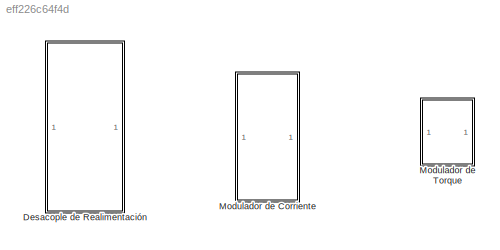
MODEL slx_eff226c64f4d
KIND model
CONFIG AbsTol = auto
CONFIG EnableMultiTasking = off
CONFIG FixedStep = auto
CONFIG MaxStep = auto
CONFIG MinStep = auto
CONFIG RelTol = 1e-3
CONFIG SampleTimeConstraint = Unconstrained
CONFIG SolverName = VariableStepAuto
CONFIG StartTime = 0.0
CONFIG StopTime = 10.0
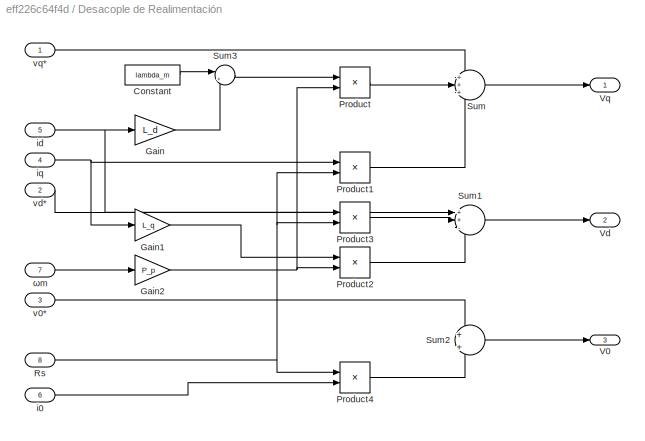
BLOCK [SubSystem] Desacople de Realimentación
BLOCK [Constant] Desacople de Realimentación/Constant
  Value = lambda_m
BLOCK [Gain] Desacople de Realimentación/Gain
  Gain = L_d
BLOCK [Gain] Desacople de Realimentación/Gain1
  Gain = L_q
BLOCK [Gain] Desacople de Realimentación/Gain2
  Gain = P_p
BLOCK [Product] Desacople de Realimentación/Product
BLOCK [Product] Desacople de Realimentación/Product1
BLOCK [Product] Desacople de Realimentación/Product2
BLOCK [Product] Desacople de Realimentación/Product3
BLOCK [Product] Desacople de Realimentación/Product4
BLOCK [Inport] Desacople de Realimentación/Rs
  Port = 8
BLOCK [Sum] Desacople de Realimentación/Sum
  Inputs = +++
BLOCK [Sum] Desacople de Realimentación/Sum1
  Inputs = ++-
BLOCK [Sum] Desacople de Realimentación/Sum2
  Inputs = +|+
BLOCK [Sum] Desacople de Realimentación/Sum3
  Inputs = |++
BLOCK [Outport] Desacople de Realimentación/V0
  Port = 3
BLOCK [Outport] Desacople de Realimentación/Vd
  Port = 2
BLOCK [Outport] Desacople de Realimentación/Vq
BLOCK [Inport] Desacople de Realimentación/i0
  Port = 6
BLOCK [Inport] Desacople de Realimentación/id
  Port = 5
BLOCK [Inport] Desacople de Realimentación/iq
  Port = 4
BLOCK [Inport] Desacople de Realimentación/v0*
  Port = 3
BLOCK [Inport] Desacople de Realimentación/vd*
  Port = 2
BLOCK [Inport] Desacople de Realimentación/vq*
BLOCK [Inport] Desacople de Realimentación/ωm
  Port = 7
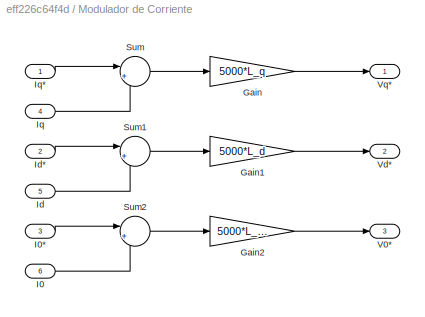
BLOCK [SubSystem] Modulador de Corriente
BLOCK [Gain] Modulador de Corriente/Gain
  Gain = 5000*L_q
BLOCK [Gain] Modulador de Corriente/Gain1
  Gain = 5000*L_d
BLOCK [Gain] Modulador de Corriente/Gain2
  Gain = 5000*L_ls
BLOCK [Inport] Modulador de Corriente/I0
  Port = 6
BLOCK [Inport] Modulador de Corriente/I0*
  Port = 3
BLOCK [Inport] Modulador de Corriente/Id
  Port = 5
BLOCK [Inport] Modulador de Corriente/Id*
  Port = 2
BLOCK [Inport] Modulador de Corriente/Iq
  Port = 4
BLOCK [Inport] Modulador de Corriente/Iq*
BLOCK [Sum] Modulador de Corriente/Sum
  Inputs = |+-
BLOCK [Sum] Modulador de Corriente/Sum1
  Inputs = |+-
BLOCK [Sum] Modulador de Corriente/Sum2
  Inputs = |+-
BLOCK [Outport] Modulador de Corriente/V0*
  Port = 3
BLOCK [Outport] Modulador de Corriente/Vd*
  Port = 2
BLOCK [Outport] Modulador de Corriente/Vq*
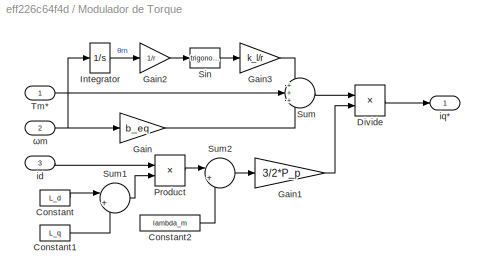
BLOCK [SubSystem] Modulador de Torque
BLOCK [Constant] Modulador de Torque/Constant
  Value = L_d
BLOCK [Constant] Modulador de Torque/Constant1
  Value = L_q
BLOCK [Constant] Modulador de Torque/Constant2
  Value = lambda_m
BLOCK [Product] Modulador de Torque/Divide
  Inputs = */
BLOCK [Gain] Modulador de Torque/Gain
  Gain = b_eq
BLOCK [Gain] Modulador de Torque/Gain1
  Gain = 3/2*P_p
BLOCK [Gain] Modulador de Torque/Gain2
  Gain = 1/r
BLOCK [Gain] Modulador de Torque/Gain3
  Gain = k_l/r
BLOCK [Integrator] Modulador de Torque/Integrator
BLOCK [Product] Modulador de Torque/Product
BLOCK [Trigonometry] Modulador de Torque/Sin
BLOCK [Sum] Modulador de Torque/Sum
  Inputs = +++
BLOCK [Sum] Modulador de Torque/Sum1
  Inputs = |+-
BLOCK [Sum] Modulador de Torque/Sum2
  Inputs = |++
BLOCK [Inport] Modulador de Torque/Tm*
BLOCK [Inport] Modulador de Torque/id
  Port = 3
BLOCK [Outport] Modulador de Torque/iq*
BLOCK [Inport] Modulador de Torque/ωm
  Port = 2
LINE Desacople de Realimentación/Constant:1 -> Desacople de Realimentación/Sum3:1
LINE Desacople de Realimentación/Gain1:1 -> Desacople de Realimentación/Product2:1
NET Desacople de Realimentación/Gain2:1 -> Desacople de Realimentación/Product2:2, Desacople de Realimentación/Product:2
LINE Desacople de Realimentación/Gain:1 -> Desacople de Realimentación/Sum3:2
LINE Desacople de Realimentación/Product1:1 -> Desacople de Realimentación/Sum:3
LINE Desacople de Realimentación/Product2:1 -> Desacople de Realimentación/Sum1:3
LINE Desacople de Realimentación/Product3:1 -> Desacople de Realimentación/Sum1:2
LINE Desacople de Realimentación/Product4:1 -> Desacople de Realimentación/Sum2:2
LINE Desacople de Realimentación/Product:1 -> Desacople de Realimentación/Sum:2
NET Desacople de Realimentación/Rs:1 -> Desacople de Realimentación/Product1:2, Desacople de Realimentación/Product3:2, Desacople de Realimentación/Product4:1
LINE Desacople de Realimentación/Sum1:1 -> Desacople de Realimentación/Vd:1
LINE Desacople de Realimentación/Sum2:1 -> Desacople de Realimentación/V0:1
LINE Desacople de Realimentación/Sum3:1 -> Desacople de Realimentación/Product:1
LINE Desacople de Realimentación/Sum:1 -> Desacople de Realimentación/Vq:1
LINE Desacople de Realimentación/i0:1 -> Desacople de Realimentación/Product4:2
NET Desacople de Realimentación/id:1 -> Desacople de Realimentación/Gain:1, Desacople de Realimentación/Product3:1
NET Desacople de Realimentación/iq:1 -> Desacople de Realimentación/Gain1:1, Desacople de Realimentación/Product1:1
LINE Desacople de Realimentación/v0*:1 -> Desacople de Realimentación/Sum2:1
LINE Desacople de Realimentación/vd*:1 -> Desacople de Realimentación/Sum1:1
LINE Desacople de Realimentación/vq*:1 -> Desacople de Realimentación/Sum:1
LINE Desacople de Realimentación/ωm:1 -> Desacople de Realimentación/Gain2:1
LINE Modulador de Corriente/Gain1:1 -> Modulador de Corriente/Vd*:1
LINE Modulador de Corriente/Gain2:1 -> Modulador de Corriente/V0*:1
LINE Modulador de Corriente/Gain:1 -> Modulador de Corriente/Vq*:1
LINE Modulador de Corriente/I0*:1 -> Modulador de Corriente/Sum2:1
LINE Modulador de Corriente/I0:1 -> Modulador de Corriente/Sum2:2
LINE Modulador de Corriente/Id*:1 -> Modulador de Corriente/Sum1:1
LINE Modulador de Corriente/Id:1 -> Modulador de Corriente/Sum1:2
LINE Modulador de Corriente/Iq*:1 -> Modulador de Corriente/Sum:1
LINE Modulador de Corriente/Iq:1 -> Modulador de Corriente/Sum:2
LINE Modulador de Corriente/Sum1:1 -> Modulador de Corriente/Gain1:1
LINE Modulador de Corriente/Sum2:1 -> Modulador de Corriente/Gain2:1
LINE Modulador de Corriente/Sum:1 -> Modulador de Corriente/Gain:1
LINE Modulador de Torque/Constant1:1 -> Modulador de Torque/Sum1:2
LINE Modulador de Torque/Constant2:1 -> Modulador de Torque/Sum2:2
LINE Modulador de Torque/Constant:1 -> Modulador de Torque/Sum1:1
LINE Modulador de Torque/Divide:1 -> Modulador de Torque/iq*:1
LINE Modulador de Torque/Gain1:1 -> Modulador de Torque/Divide:2
LINE Modulador de Torque/Gain2:1 -> Modulador de Torque/Sin:1
LINE Modulador de Torque/Gain3:1 -> Modulador de Torque/Sum:1
LINE Modulador de Torque/Gain:1 -> Modulador de Torque/Sum:3
LINE Modulador de Torque/Integrator:1 -> Modulador de Torque/Gain2:1
LINE Modulador de Torque/Product:1 -> Modulador de Torque/Sum2:1
LINE Modulador de Torque/Sin:1 -> Modulador de Torque/Gain3:1
LINE Modulador de Torque/Sum1:1 -> Modulador de Torque/Product:2
LINE Modulador de Torque/Sum2:1 -> Modulador de Torque/Gain1:1
LINE Modulador de Torque/Sum:1 -> Modulador de Torque/Divide:1
LINE Modulador de Torque/Tm*:1 -> Modulador de Torque/Sum:2
LINE Modulador de Torque/id:1 -> Modulador de Torque/Product:1
NET Modulador de Torque/ωm:1 -> Modulador de Torque/Gain:1, Modulador de Torque/Integrator:1
note: NET lines group one-source signal fan-out (src -> all destinations, sorted); 1:1 wires keep LINE
